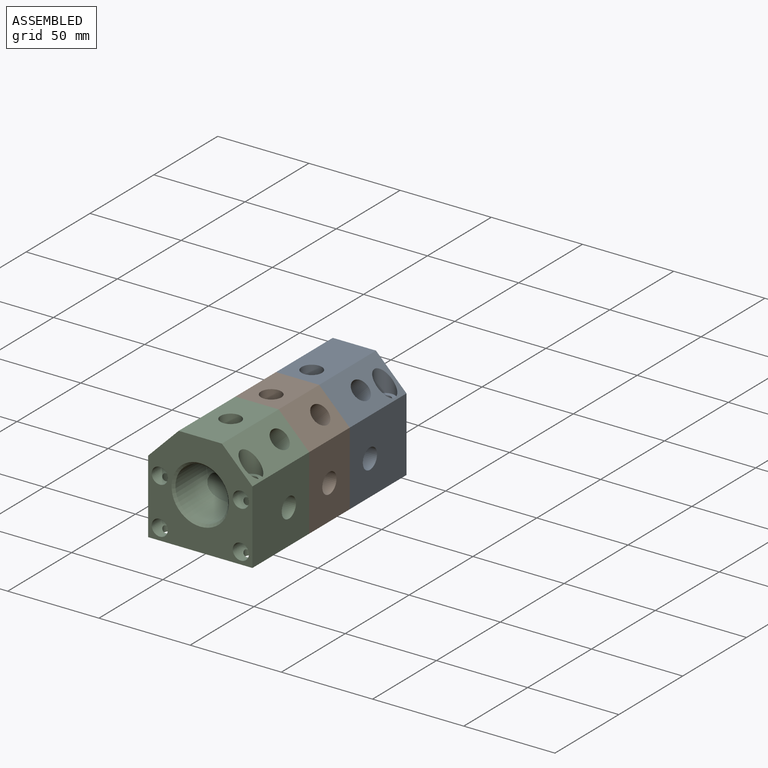
[diagram: assembled view]
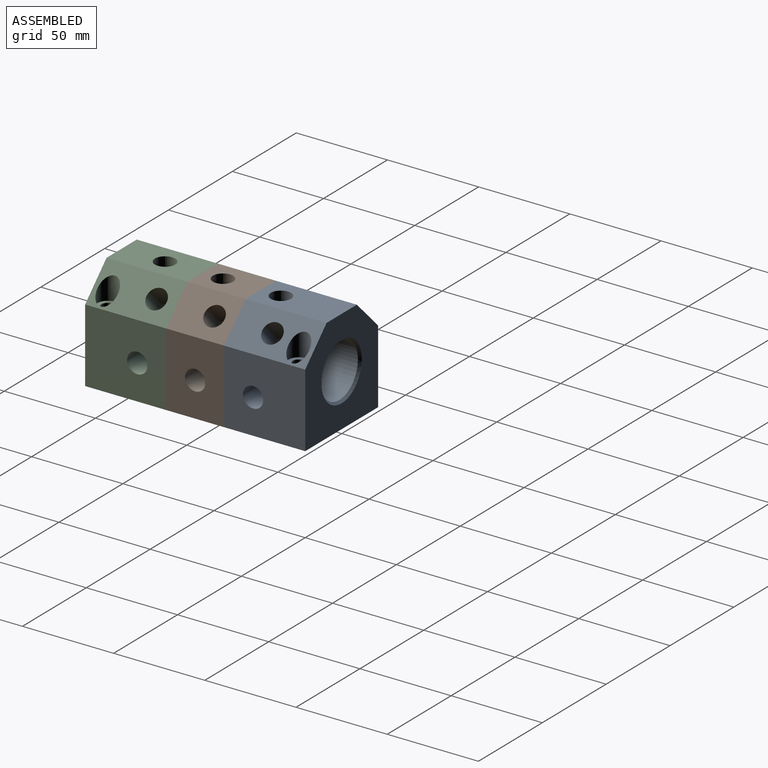
[diagram: assembled view, second angle]
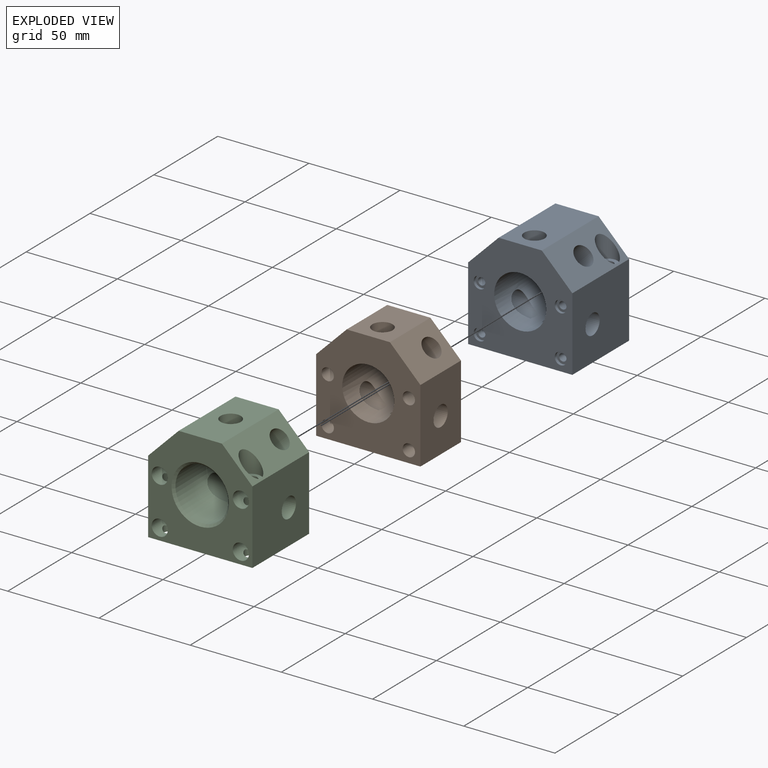
[diagram: exploded view]
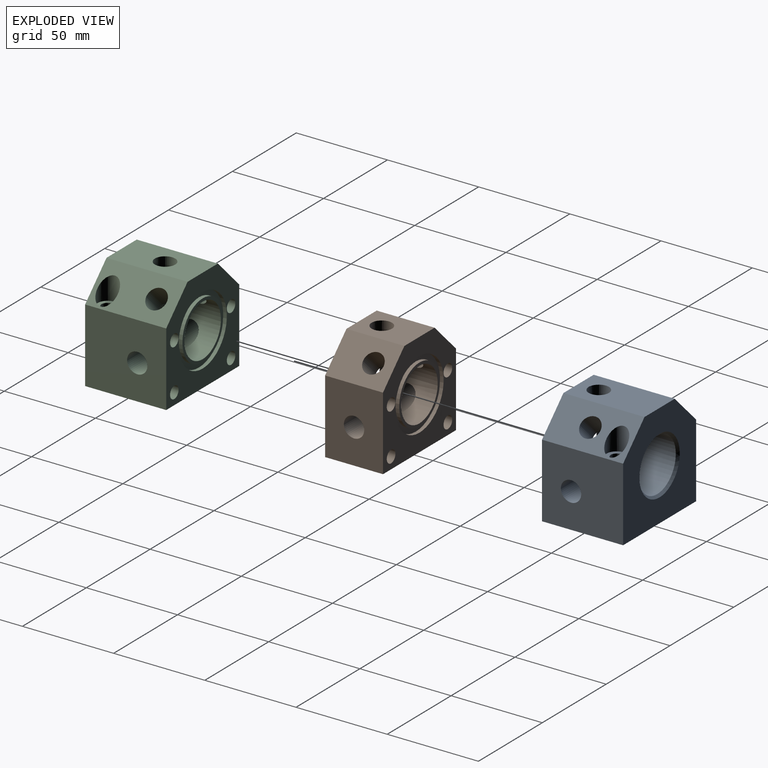
[diagram: exploded view, second angle]
ASSEMBLY  parts=3 mates=2
PART A: 44 faces, bbox 57.2x44.5x57.2 mm
  f0: cylinder r=14.29mm len=28.58mm, axis (0,-1,0), area 1303mm2, adj f1,f2,f3,f4,f12,f15,f16,f17
  f1: cone r=0mm half-angle=59deg, axis (0,1,0), area 2.8mm2, adj f0,f5,f19,f20
  f2: cone r=0mm half-angle=59deg, axis (0,1,0), area 2.6mm2, adj f0,f5,f18,f20
  f3: cone r=0mm half-angle=59deg, axis (0,1,0), area 2.6mm2, adj f0,f5,f15,f19
  f4: cone r=0mm half-angle=59deg, axis (0,1,0), area 1.5mm2, adj f0,f5,f15,f16,f17,f18
  f5: cylinder r=14.49mm len=28.98mm, axis (0,1,0), area 2018mm2, adj f1,f2,f3,f4,f14,f15,f18,f19
  f6: plane 44.45x40.41mm, normal (-1,0,0), area 1699.1mm2, adj f7,f11,f12,f13,f15
  f7: plane 57.15x44.45mm, normal (0,0,-1), area 2471.9mm2, adj f6,f8,f12,f13,f22,f26
  f8: plane 44.45x40.41mm, normal (1,0,0), area 1699.1mm2, adj f7,f9,f12,f13,f18
  f9: plane 44.45x16.74mm, normal (0.71,0,0.71), area 814.4mm2, adj f8,f10,f12,f13,f20,f25
  f10: plane 44.45x23.67mm, normal (0,0,1), area 955mm2, adj f9,f11,f12,f13,f21
  f11: plane 44.45x16.74mm, normal (-0.71,0,0.71), area 814.4mm2, adj f6,f10,f12,f13,f19,f24
  f12: plane 57.15x57.15mm, normal (0,-1,0), area 2206.6mm2, adj f0,f6,f7,f8,f9,f10,f11,f30
  f13: plane 57.15x57.15mm, normal (0,1,0), area 2205.6mm2, adj f6,f7,f8,f9,f10,f11,f14
  f14: cone r=14.49mm half-angle=45deg, axis (0,1,0), area 170.7mm2, adj f5,f13
  f15: cylinder r=5.56mm len=25.4mm, axis (-1,0,0), area 671.5mm2, adj f0,f3,f4,f5,f6,f16
  f16: cone r=0mm half-angle=59deg, axis (-1,0,0), area 5.6mm2, adj f0,f4,f15
  f17: cone r=0mm half-angle=59deg, axis (1,0,0), area 5.6mm2, adj f0,f4,f18
  f18: cylinder r=5.56mm len=25.4mm, axis (1,0,0), area 671.3mm2, adj f0,f2,f4,f5,f8,f17
  f19: cylinder r=5.56mm len=18.69mm, axis (-0.71,0,0.71), area 514.4mm2, adj f0,f1,f3,f5,f11
  f20: cylinder r=5.56mm len=18.69mm, axis (0.71,0,0.71), area 514.4mm2, adj f0,f1,f2,f5,f9
  f21: cylinder r=5.56mm len=15.42mm, axis (0,0,1), area 538.8mm2, adj f0,f10
  f22: cylinder r=3.3mm len=39.37mm, axis (0,0,1), area 816.3mm2, adj f7,f23
  f23: plane 11.25x11.25mm, normal (0,0,1), area 65.2mm2, adj f22,f24
  f24: cylinder r=5.62mm len=13.02mm, axis (0,0,1), area 261.2mm2, adj f11,f23
  f25: cylinder r=5.62mm len=13.02mm, axis (0,0,1), area 261.2mm2, adj f9,f27
  f26: cylinder r=3.3mm len=39.37mm, axis (0,0,1), area 816.3mm2, adj f7,f27
  f27: plane 11.25x11.25mm, normal (0,0,1), area 65.2mm2, adj f25,f26
  f28: cylinder r=2.02mm len=22.54mm, axis (0,-1,0), area 286mm2, adj f29,f31
  f29: plane 6.63x6.63mm, normal (0,-1,0), area 21.7mm2, adj f28,f30
  f30: cylinder r=3.31mm len=6.63mm, axis (0,-1,0), area 33.1mm2, adj f12,f29
  f31: cone r=0mm half-angle=59deg, axis (0,-1,0), area 14.9mm2, adj f28
  f32: cylinder r=2.02mm len=22.54mm, axis (0,-1,0), area 286mm2, adj f33,f35
  f33: plane 6.63x6.63mm, normal (0,-1,0), area 21.7mm2, adj f32,f34
  f34: cylinder r=3.31mm len=6.63mm, axis (0,-1,0), area 33.1mm2, adj f12,f33
  f35: cone r=0mm half-angle=59deg, axis (0,-1,0), area 14.9mm2, adj f32
  f36: cylinder r=2.02mm len=22.54mm, axis (0,-1,0), area 286mm2, adj f37,f39
  f37: plane 6.63x6.63mm, normal (0,-1,0), area 21.7mm2, adj f36,f38
  f38: cylinder r=3.31mm len=6.63mm, axis (0,-1,0), area 33.1mm2, adj f12,f37
  f39: cone r=0mm half-angle=59deg, axis (0,-1,0), area 14.9mm2, adj f36
  f40: cylinder r=2.02mm len=22.54mm, axis (0,-1,0), area 286mm2, adj f41,f43
  f41: plane 6.63x6.63mm, normal (0,-1,0), area 21.7mm2, adj f40,f42
  f42: cylinder r=3.31mm len=6.63mm, axis (0,-1,0), area 33.1mm2, adj f12,f41
  f43: cone r=0mm half-angle=59deg, axis (0,-1,0), area 14.9mm2, adj f40
PART B: 24 faces, bbox 57.2x31.8x57.2 mm
  f0: plane 31.75x31.75mm, normal (0,1,0), area 150.4mm2, adj f1,f21
  f1: cylinder r=14.29mm len=31.75mm, axis (0,-1,0), area 2266.5mm2, adj f0,f8,f14,f15,f16,f17,f18,f19
  f2: plane 40.41x31.75mm, normal (-1,0,0), area 1185.9mm2, adj f3,f7,f8,f9,f17
  f3: plane 57.15x31.75mm, normal (0,0,-1), area 1814.5mm2, adj f2,f4,f8,f9
  f4: plane 40.41x31.75mm, normal (1,0,0), area 1185.9mm2, adj f3,f5,f8,f9,f14
  f5: plane 31.75x16.74mm, normal (0.71,0,0.71), area 654.4mm2, adj f4,f6,f8,f9,f18
  f6: plane 31.75x23.67mm, normal (0,0,1), area 654.4mm2, adj f5,f7,f8,f9,f19
  f7: plane 31.75x16.74mm, normal (-0.71,0,0.71), area 654.4mm2, adj f2,f6,f8,f9,f20
  f8: plane 57.15x57.15mm, normal (0,-1,0), area 2201.2mm2, adj f1,f2,f3,f4,f5,f6,f7,f10
  f9: plane 57.15x57.15mm, normal (0,1,0), area 1717.6mm2, adj f2,f3,f4,f5,f6,f7,f10,f11
  f10: cylinder r=3.38mm len=31.75mm, axis (0,-1,0), area 673.9mm2, adj f8,f9
  f11: cylinder r=3.38mm len=31.75mm, axis (0,-1,0), area 673.9mm2, adj f8,f9
  f12: cylinder r=3.38mm len=31.75mm, axis (0,-1,0), area 673.9mm2, adj f8,f9
  f13: cylinder r=3.38mm len=31.75mm, axis (0,-1,0), area 673.9mm2, adj f8,f9
  f14: cylinder r=5.56mm len=25.4mm, axis (1,0,0), area 674.9mm2, adj f1,f4,f15
  f15: cone r=0mm half-angle=59deg, axis (1,0,0), area 5.6mm2, adj f1,f14
  f16: cone r=0mm half-angle=59deg, axis (-1,0,0), area 5.6mm2, adj f1,f17
  f17: cylinder r=5.56mm len=25.4mm, axis (-1,0,0), area 674.9mm2, adj f1,f2,f16
  f18: cylinder r=5.56mm len=18.77mm, axis (0.71,0,0.71), area 518.9mm2, adj f1,f5
  f19: cylinder r=5.56mm len=15.42mm, axis (0,0,1), area 518.9mm2, adj f1,f6
  f20: cylinder r=5.56mm len=18.77mm, axis (-0.71,0,0.71), area 518.9mm2, adj f1,f7
  f21: cylinder r=15.88mm len=31.75mm, axis (0,1,0), area 202.7mm2, adj f0,f23
  f22: cylinder r=18.92mm len=37.85mm, axis (0,1,0), area 241.6mm2, adj f9,f23
  f23: plane 37.85x37.85mm, normal (0,1,0), area 333.2mm2, adj f21,f22
PART C: 55 faces, bbox 57.2x44.5x57.2 mm
  f0: plane 31.75x31.75mm, normal (0,1,0), area 150.4mm2, adj f9,f52
  f1: cylinder r=2.55mm len=5.11mm, axis (0,-1,0), area 14.3mm2, adj f34,f50
  f2: cylinder r=2.55mm len=5.11mm, axis (0,-1,0), area 14.3mm2, adj f37,f48
  f3: cylinder r=2.55mm len=5.11mm, axis (0,-1,0), area 14.3mm2, adj f39,f46
  f4: cylinder r=2.55mm len=5.11mm, axis (0,-1,0), area 14.3mm2, adj f42,f44
  f5: cylinder r=3.38mm len=6.76mm, axis (0,0,1), area 57.2mm2, adj f15,f43
  f6: cylinder r=3.38mm len=6.76mm, axis (0,0,1), area 75.6mm2, adj f24,f40
  f7: cylinder r=3.38mm len=6.76mm, axis (0,0,1), area 57.2mm2, adj f15,f38
  f8: cylinder r=3.38mm len=6.76mm, axis (0,0,1), area 75.6mm2, adj f25,f35
  f9: cylinder r=14.29mm len=28.58mm, axis (0,1,0), area 1244.2mm2, adj f0,f10,f11,f12,f27,f28,f29,f30
  f10: cone r=0mm half-angle=59deg, axis (0,-1,0), area 5.3mm2, adj f9,f13,f27,f31
  f11: cone r=0mm half-angle=59deg, axis (0,-1,0), area 5.3mm2, adj f9,f13,f30,f31
  f12: cone r=0mm half-angle=59deg, axis (0,-1,0), area 1.5mm2, adj f9,f13,f27,f28,f29,f30
  f13: cylinder r=14.49mm len=28.98mm, axis (0,-1,0), area 2085.2mm2, adj f10,f11,f12,f22,f27,f30,f31
  f14: plane 44.45x40.41mm, normal (-1,0,0), area 1699.1mm2, adj f15,f19,f20,f21,f27
  f15: plane 57.15x44.45mm, normal (0,0,-1), area 2468.6mm2, adj f5,f7,f14,f16,f20,f21
  f16: plane 44.45x40.41mm, normal (1,0,0), area 1699.1mm2, adj f15,f17,f20,f21,f30
  f17: plane 44.45x16.74mm, normal (0.71,0,0.71), area 817.8mm2, adj f16,f18,f20,f21,f26,f33
  f18: plane 44.45x23.67mm, normal (0,0,1), area 955mm2, adj f17,f19,f20,f21,f31
  f19: plane 44.45x16.74mm, normal (-0.71,0,0.71), area 817.8mm2, adj f14,f18,f20,f21,f23,f32
  f20: plane 57.15x57.15mm, normal (0,1,0), area 1722.9mm2, adj f14,f15,f16,f17,f18,f19,f45,f47
  f21: plane 57.15x57.15mm, normal (0,-1,0), area 1960.1mm2, adj f14,f15,f16,f17,f18,f19,f22,f35
  f22: cone r=14.49mm half-angle=45deg, axis (0,-1,0), area 170.7mm2, adj f13,f21
  f23: cylinder r=5.56mm len=12.95mm, axis (0,0,1), area 258mm2, adj f19,f24
  f24: plane 11.11x11.11mm, normal (0,0,1), area 61.1mm2, adj f6,f23
  f25: plane 11.11x11.11mm, normal (0,0,1), area 61.1mm2, adj f8,f26
  f26: cylinder r=5.56mm len=12.95mm, axis (0,0,1), area 258mm2, adj f17,f25
  f27: cylinder r=5.56mm len=25.4mm, axis (-1,0,0), area 671.5mm2, adj f9,f10,f12,f13,f14,f28
  f28: cone r=0mm half-angle=59deg, axis (-1,0,0), area 5.6mm2, adj f9,f12,f27
  f29: cone r=0mm half-angle=59deg, axis (1,0,0), area 5.6mm2, adj f9,f12,f30
  f30: cylinder r=5.56mm len=25.4mm, axis (1,0,0), area 671.3mm2, adj f9,f11,f12,f13,f16,f29
  f31: cylinder r=5.56mm len=15.3mm, axis (0,0,1), area 514.4mm2, adj f9,f10,f11,f13,f18
  f32: cylinder r=5.56mm len=18.77mm, axis (-0.71,0,0.71), area 538.8mm2, adj f9,f19
  f33: cylinder r=5.56mm len=18.77mm, axis (0.71,0,0.71), area 538.8mm2, adj f9,f17
  f34: plane 8.84x8.84mm, normal (0,-1,0), area 40.9mm2, adj f1,f35
  f35: cylinder r=4.42mm len=22.23mm, axis (0,-1,0), area 545.2mm2, adj f8,f21,f34,f36
  f36: cylinder r=3.38mm len=20.08mm, axis (0,0,1), area 391.6mm2, adj f35,f38
  f37: plane 8.84x8.84mm, normal (0,-1,0), area 40.9mm2, adj f2,f38
  f38: cylinder r=4.42mm len=22.23mm, axis (0,-1,0), area 545.2mm2, adj f7,f21,f36,f37
  f39: plane 8.84x8.84mm, normal (0,-1,0), area 40.9mm2, adj f3,f40
  f40: cylinder r=4.42mm len=22.23mm, axis (0,-1,0), area 545.2mm2, adj f6,f21,f39,f41
  f41: cylinder r=3.38mm len=20.08mm, axis (0,0,1), area 391.6mm2, adj f40,f43
  f42: plane 8.84x8.84mm, normal (0,-1,0), area 40.9mm2, adj f4,f43
  f43: cylinder r=4.42mm len=22.23mm, axis (0,-1,0), area 545.2mm2, adj f5,f21,f41,f42
  f44: plane 6.63x6.63mm, normal (0,1,0), area 14mm2, adj f4,f45
  f45: cylinder r=3.31mm len=21.34mm, axis (0,1,0), area 444.4mm2, adj f20,f44
  f46: plane 6.63x6.63mm, normal (0,1,0), area 14mm2, adj f3,f47
  f47: cylinder r=3.31mm len=21.34mm, axis (0,1,0), area 444.4mm2, adj f20,f46
  f48: plane 6.63x6.63mm, normal (0,1,0), area 14mm2, adj f2,f49
  f49: cylinder r=3.31mm len=21.34mm, axis (0,1,0), area 444.4mm2, adj f20,f48
  f50: plane 6.63x6.63mm, normal (0,1,0), area 14mm2, adj f1,f51
  f51: cylinder r=3.31mm len=21.34mm, axis (0,1,0), area 444.4mm2, adj f20,f50
  f52: cylinder r=15.88mm len=31.75mm, axis (0,1,0), area 202.7mm2, adj f0,f54
  f53: cylinder r=18.92mm len=37.85mm, axis (0,1,0), area 241.6mm2, adj f20,f54
  f54: plane 37.85x37.85mm, normal (0,1,0), area 333.2mm2, adj f52,f53
PLACE A at identity fixed
PLACE B t=(0,-44.45,0)mm
PLACE C t=(0,-120.65,0)mm
MATE fastened A.f0 <-> B.f1  axis (0,-1,0) through (0,-44.45,0)mm
MATE fastened B.f1 <-> C.f9  axis (0,-1,0) through (0,-76.2,0)mm
